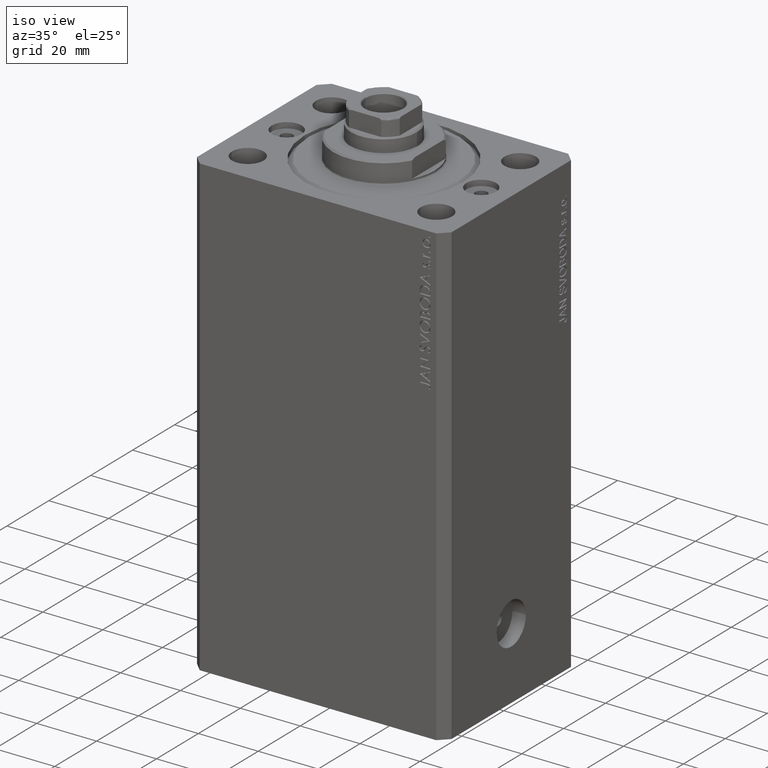
[diagram: clean part render]
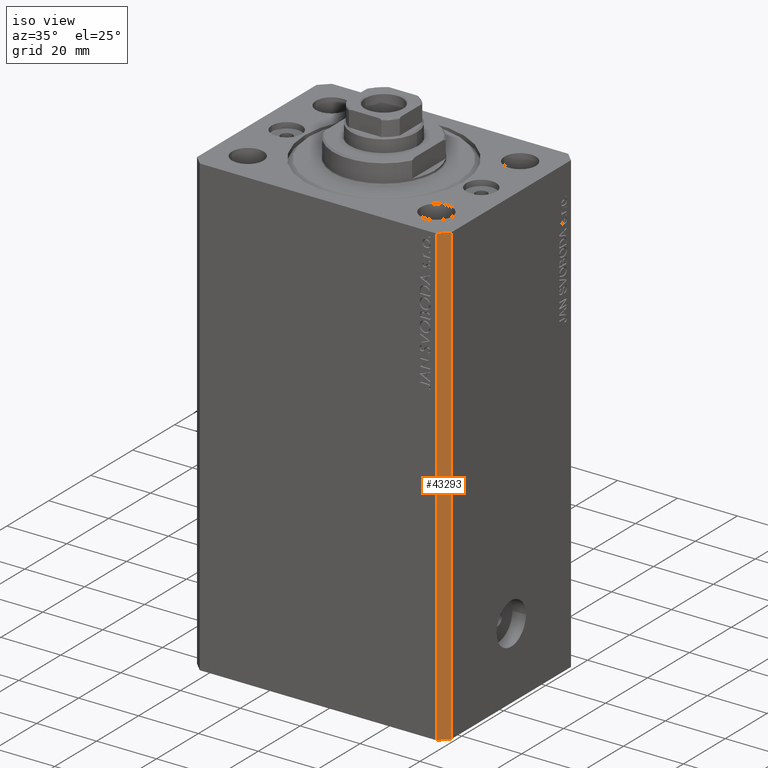
[diagram: same view with one face highlighted and labeled with its STEP entity id]
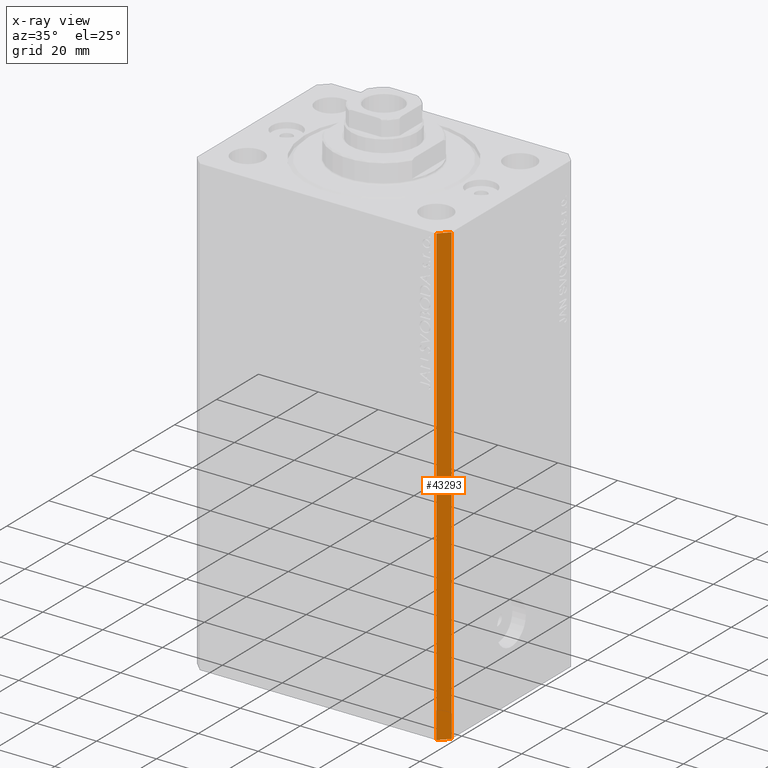
[diagram: x-ray of the same camera — body ghosted, the highlighted face saturated]
A machine part, iso view. The second image highlights one B-rep face of the part: STEP entity #43293.
The next image is the same camera in x-ray: the body ghosted, the highlighted face saturated — about 0% of this face is hidden behind the body in this view.
In plain terms, the highlighted planar face has unit normal (0.7071, -0.7071, 0).
Its self-contained STEP definition (entity closure, byte-faithful):
#19 = CARTESIAN_POINT ( 'NONE',  ( 39.50000000000000711, -31.50000000000000000, -153.0000000000000000 ) ) ;
#1036 = CARTESIAN_POINT ( 'NONE',  ( 42.50000000000000711, -28.50000000000000355, 0.000000000000000000 ) ) ;
#1589 = ORIENTED_EDGE ( 'NONE', *, *, #35171, .T. ) ;
#6085 = PLANE ( 'NONE',  #25055 ) ;
#6429 = LINE ( 'NONE', #31751, #21522 ) ;
#6474 = EDGE_CURVE ( 'NONE', #30125, #6548, #6429, .T. ) ;
#6548 = VERTEX_POINT ( 'NONE', #1036 ) ;
#9605 = LINE ( 'NONE', #13644, #33043 ) ;
#9949 = VECTOR ( 'NONE', #10166, 1000.000000000000000 ) ;
#10166 = DIRECTION ( 'NONE',  ( 0.7071067811865483499, 0.7071067811865466846, 0.000000000000000000 ) ) ;
#13644 = CARTESIAN_POINT ( 'NONE',  ( 39.50000000000000711, -31.50000000000000000, -153.0000000000000000 ) ) ;
#15279 = ORIENTED_EDGE ( 'NONE', *, *, #6474, .F. ) ;
#21522 = VECTOR ( 'NONE', #28166, 1000.000000000000000 ) ;
#22301 = LINE ( 'NONE', #40243, #9949 ) ;
#23121 = FACE_OUTER_BOUND ( 'NONE', #25261, .T. ) ;
#23286 = DIRECTION ( 'NONE',  ( 0.000000000000000000, 0.000000000000000000, 1.000000000000000000 ) ) ;
#24178 = ORIENTED_EDGE ( 'NONE', *, *, #41653, .F. ) ;
#25055 = AXIS2_PLACEMENT_3D ( 'NONE', #19, #27151, #40825 ) ;
#25261 = EDGE_LOOP ( 'NONE', ( #15279, #24178, #1589, #43734 ) ) ;
#27151 = DIRECTION ( 'NONE',  ( 0.7071067811865466846, -0.7071067811865483499, 0.000000000000000000 ) ) ;
#27609 = VERTEX_POINT ( 'NONE', #32970 ) ;
#28129 = EDGE_CURVE ( 'NONE', #39133, #6548, #32422, .T. ) ;
#28166 = DIRECTION ( 'NONE',  ( 0.7071067811865483499, 0.7071067811865466846, 0.000000000000000000 ) ) ;
#30125 = VERTEX_POINT ( 'NONE', #42943 ) ;
#31751 = CARTESIAN_POINT ( 'NONE',  ( 39.50000000000000711, -31.50000000000000000, 0.000000000000000000 ) ) ;
#32422 = LINE ( 'NONE', #42949, #32674 ) ;
#32674 = VECTOR ( 'NONE', #35558, 1000.000000000000000 ) ;
#32970 = CARTESIAN_POINT ( 'NONE',  ( 39.50000000000000711, -31.50000000000000000, -153.0000000000000000 ) ) ;
#33043 = VECTOR ( 'NONE', #23286, 1000.000000000000000 ) ;
#35171 = EDGE_CURVE ( 'NONE', #27609, #39133, #22301, .T. ) ;
#35558 = DIRECTION ( 'NONE',  ( 0.000000000000000000, 0.000000000000000000, 1.000000000000000000 ) ) ;
#38039 = CARTESIAN_POINT ( 'NONE',  ( 42.50000000000000711, -28.50000000000000355, -153.0000000000000000 ) ) ;
#39133 = VERTEX_POINT ( 'NONE', #38039 ) ;
#40243 = CARTESIAN_POINT ( 'NONE',  ( 39.50000000000000711, -31.50000000000000000, -153.0000000000000000 ) ) ;
#40825 = DIRECTION ( 'NONE',  ( 0.7071067811865483499, 0.7071067811865466846, 0.000000000000000000 ) ) ;
#41653 = EDGE_CURVE ( 'NONE', #27609, #30125, #9605, .T. ) ;
#42943 = CARTESIAN_POINT ( 'NONE',  ( 39.50000000000000711, -31.50000000000000000, 0.000000000000000000 ) ) ;
#42949 = CARTESIAN_POINT ( 'NONE',  ( 42.50000000000000711, -28.50000000000000355, -153.0000000000000000 ) ) ;
#43293 = ADVANCED_FACE ( 'NONE', ( #23121 ), #6085, .T. ) ;
#43734 = ORIENTED_EDGE ( 'NONE', *, *, #28129, .T. ) ;